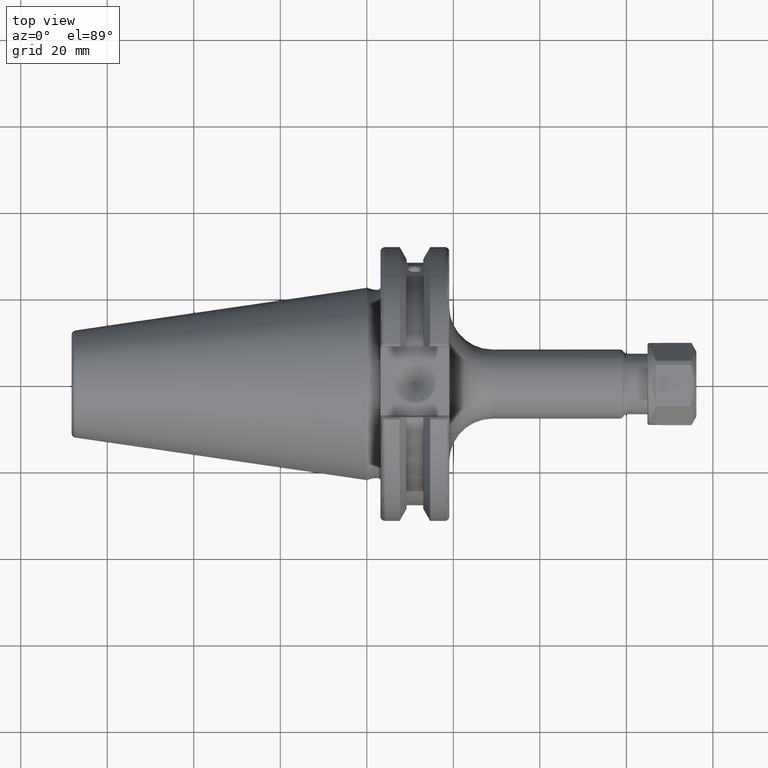
[diagram: clean part render]
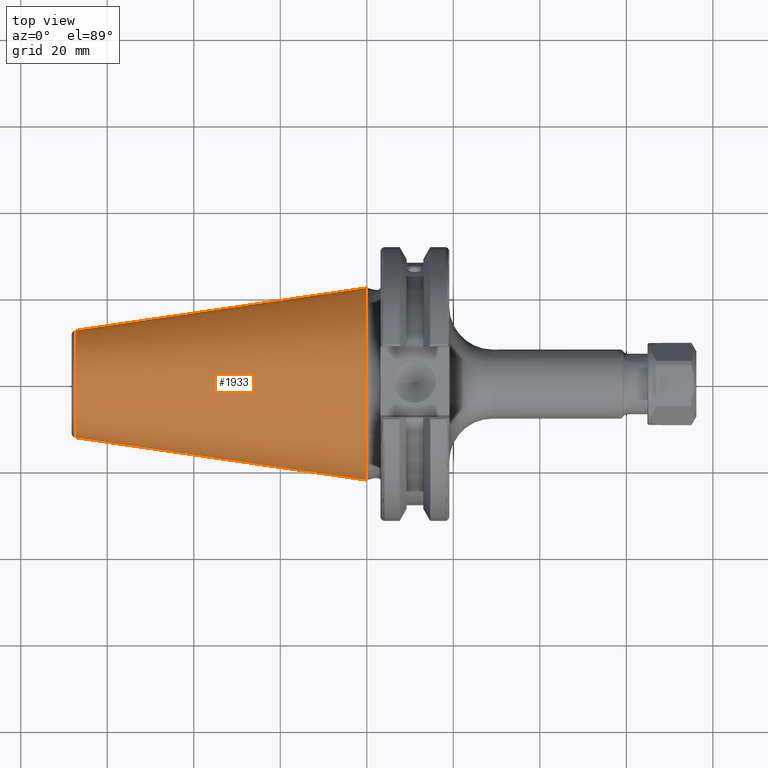
[diagram: same view with one face highlighted and labeled with its STEP entity id]
A machine part, top view. The second image highlights one B-rep face of the part: STEP entity #1933.
In plain terms, the highlighted conical surface has half-angle 8.297 deg.
Its self-contained STEP definition (entity closure, byte-faithful):
#283=FACE_OUTER_BOUND('',#405,.T.);
#405=EDGE_LOOP('',(#1625,#1626,#1627,#1628,#1629));
#537=LINE('',#3658,#654);
#654=VECTOR('',#2649,17.2484375);
#753=CIRCLE('',#2185,12.3966635780937);
#754=CIRCLE('',#2186,12.3966635780937);
#758=CIRCLE('',#2192,22.225);
#933=VERTEX_POINT('',#3645);
#934=VERTEX_POINT('',#3646);
#937=VERTEX_POINT('',#3656);
#1185=EDGE_CURVE('',#933,#934,#753,.T.);
#1186=EDGE_CURVE('',#934,#933,#754,.T.);
#1190=EDGE_CURVE('',#937,#937,#758,.T.);
#1191=EDGE_CURVE('',#937,#934,#537,.T.);
#1625=ORIENTED_EDGE('',*,*,#1190,.F.);
#1626=ORIENTED_EDGE('',*,*,#1191,.T.);
#1627=ORIENTED_EDGE('',*,*,#1185,.F.);
#1628=ORIENTED_EDGE('',*,*,#1186,.F.);
#1629=ORIENTED_EDGE('',*,*,#1191,.F.);
#1866=CONICAL_SURFACE('',#2191,17.2484375,0.144812498238939);
#1933=ADVANCED_FACE('',(#283),#1866,.T.);
#2185=AXIS2_PLACEMENT_3D('',#3647,#2633,#2634);
#2186=AXIS2_PLACEMENT_3D('',#3648,#2635,#2636);
#2191=AXIS2_PLACEMENT_3D('',#3655,#2645,#2646);
#2192=AXIS2_PLACEMENT_3D('',#3657,#2647,#2648);
#2633=DIRECTION('center_axis',(-1.,0.,0.));
#2634=DIRECTION('ref_axis',(0.,-1.,3.06161699786838E-17));
#2635=DIRECTION('center_axis',(-1.,0.,0.));
#2636=DIRECTION('ref_axis',(0.,-1.,3.06161699786838E-17));
#2645=DIRECTION('center_axis',(1.,0.,0.));
#2646=DIRECTION('ref_axis',(0.,1.,0.));
#2647=DIRECTION('center_axis',(1.,0.,0.));
#2648=DIRECTION('ref_axis',(0.,0.,-1.));
#2649=DIRECTION('',(-0.989532981063282,0.144306893071729,1.76724974695192E-17));
#3645=CARTESIAN_POINT('',(-67.3943068930717,-1.5181534371019E-15,12.3966635780937));
#3646=CARTESIAN_POINT('',(-67.3943068930718,-12.3966635780937,-1.5181534371019E-15));
#3647=CARTESIAN_POINT('Origin',(-67.3943068930717,0.,-1.89769179637738E-15));
#3648=CARTESIAN_POINT('Origin',(-67.3943068930717,0.,-1.89769179637738E-15));
#3655=CARTESIAN_POINT('Origin',(-34.125,0.,0.));
#3656=CARTESIAN_POINT('',(0.,-22.225,-2.72177751110499E-15));
#3657=CARTESIAN_POINT('Origin',(0.,0.,0.));
#3658=CARTESIAN_POINT('',(-34.125,-17.2484375,-2.11232437746682E-15));